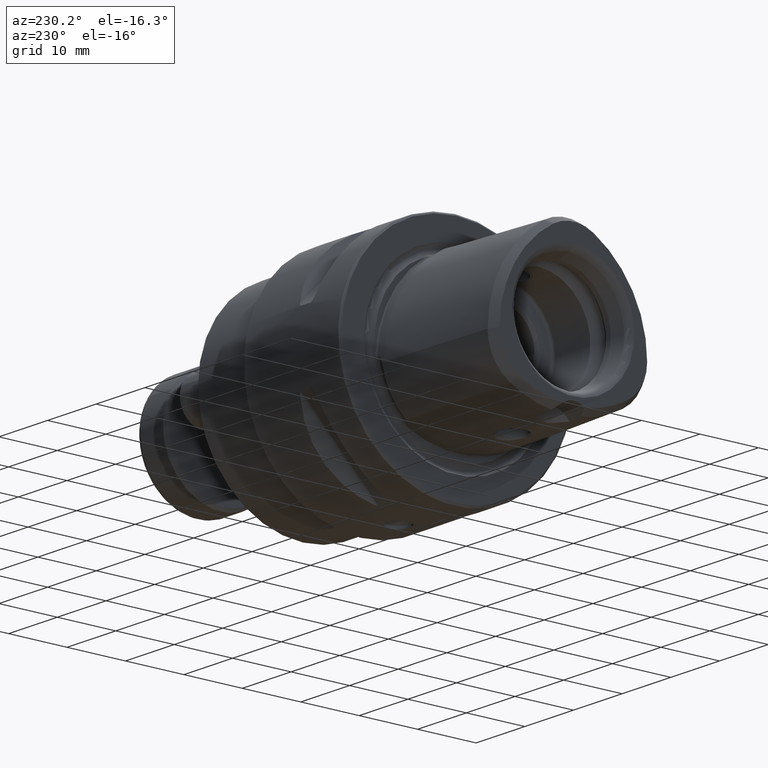
[diagram: clean part render]
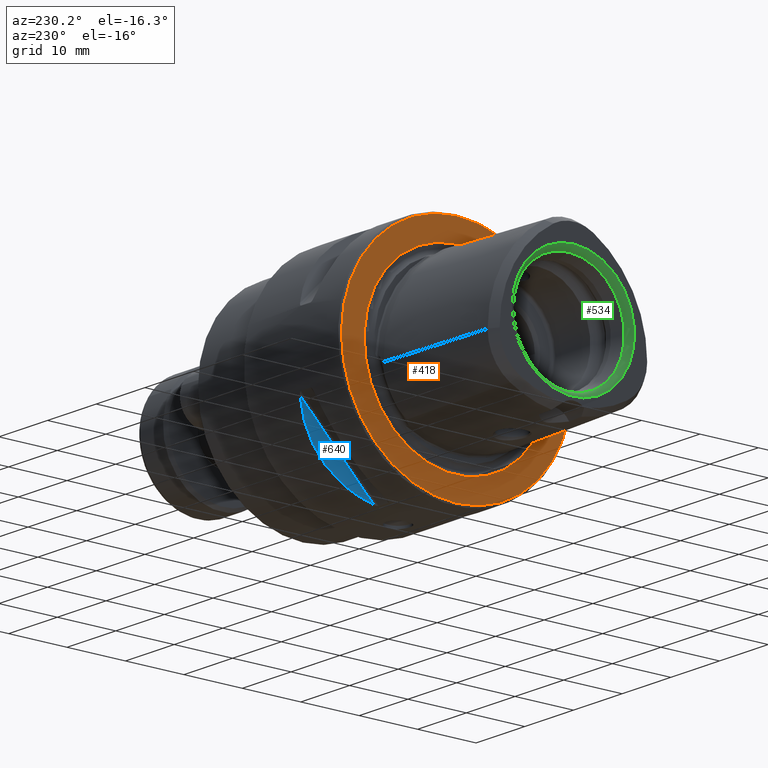
[diagram: same view with three faces highlighted in distinct colors, each labeled with its STEP entity id]
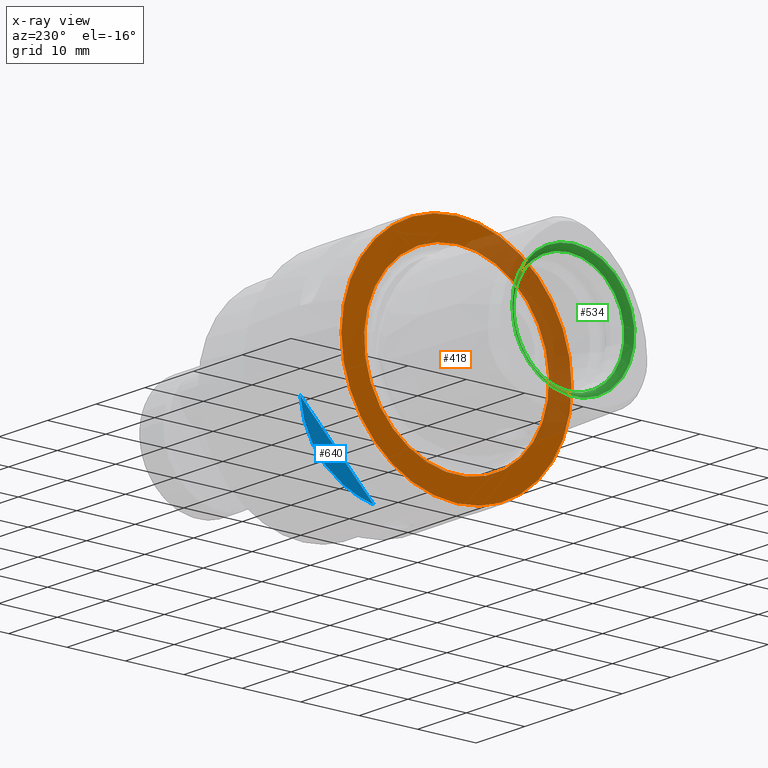
[diagram: x-ray of the same camera — body ghosted, the three highlighted faces saturated]
A machine part, auxiliary view with three faces highlighted in distinct colors.
The next image is the same camera in x-ray (body ghosted, the three faces saturated) — at least one of them is partly hidden behind the body in this view.
Their STEP definitions:

[orange] entity #418 — the highlighted planar face has unit normal (-1, 0, 0).
#418 = ADVANCED_FACE( '', ( #918, #919 ), #920, .T. );
#918 = FACE_OUTER_BOUND( '', #1589, .T. );
#919 = FACE_BOUND( '', #1590, .T. );
#920 = PLANE( '', #1591 );
#1589 = EDGE_LOOP( '', ( #2407 ) );
#1590 = EDGE_LOOP( '', ( #2408 ) );
#1591 = AXIS2_PLACEMENT_3D( '', #2409, #2410, #2411 );
#2407 = ORIENTED_EDGE( '', *, *, #3464, .T. );
#2408 = ORIENTED_EDGE( '', *, *, #3569, .F. );
#2409 = CARTESIAN_POINT( '', ( 0.000000000000000, 0.000000000000000, 15.5000000000000 ) );
#2410 = DIRECTION( '', ( -1.00000000000000, 0.000000000000000, 0.000000000000000 ) );
#2411 = DIRECTION( '', ( 0.000000000000000, 0.000000000000000, 1.00000000000000 ) );
#3464 = EDGE_CURVE( '', #3995, #3995, #3996, .T. );
#3569 = EDGE_CURVE( '', #4168, #4168, #4169, .T. );
#3995 = VERTEX_POINT( '', #4937 );
#3996 = CIRCLE( '', #4938, 19.7000000000000 );
#4168 = VERTEX_POINT( '', #5279 );
#4169 = CIRCLE( '', #5280, 15.8142135623731 );
#4937 = CARTESIAN_POINT( '', ( 0.000000000000000, 0.000000000000000, 19.7000000000000 ) );
#4938 = AXIS2_PLACEMENT_3D( '', #6165, #6166, #6167 );
#5279 = CARTESIAN_POINT( '', ( 0.000000000000000, 0.000000000000000, 15.8142135623731 ) );
#5280 = AXIS2_PLACEMENT_3D( '', #6298, #6299, #6300 );
#6165 = CARTESIAN_POINT( '', ( 0.000000000000000, 0.000000000000000, -1.70351190090483E-015 ) );
#6166 = DIRECTION( '', ( -1.00000000000000, 0.000000000000000, 0.000000000000000 ) );
#6167 = DIRECTION( '', ( 0.000000000000000, 0.000000000000000, 1.00000000000000 ) );
#6298 = CARTESIAN_POINT( '', ( 0.000000000000000, 0.000000000000000, 0.000000000000000 ) );
#6299 = DIRECTION( '', ( -1.00000000000000, 0.000000000000000, 0.000000000000000 ) );
#6300 = DIRECTION( '', ( 0.000000000000000, 0.000000000000000, 1.00000000000000 ) );

[blue] entity #640 — the highlighted planar face has unit normal (-0.866, 0.3536, -0.3536).
#640 = ADVANCED_FACE( '', ( #1322 ), #1323, .T. );
#1322 = FACE_OUTER_BOUND( '', #1993, .T. );
#1323 = PLANE( '', #1994 );
#1993 = EDGE_LOOP( '', ( #3245, #3246 ) );
#1994 = AXIS2_PLACEMENT_3D( '', #3247, #3248, #3249 );
#3245 = ORIENTED_EDGE( '', *, *, #3757, .F. );
#3246 = ORIENTED_EDGE( '', *, *, #3612, .F. );
#3247 = CARTESIAN_POINT( '', ( 9.38564064605510, 63.3326492205189, 38.0182264540405 ) );
#3248 = DIRECTION( '', ( -0.866025403784439, 0.353553390593273, -0.353553390593274 ) );
#3249 = DIRECTION( '', ( -0.377964473009227, 1.57009245868377E-016, 0.925820099772552 ) );
#3612 = EDGE_CURVE( '', #4234, #4235, #4236, .T. );
#3757 = EDGE_CURVE( '', #4235, #4234, #4442, .F. );
#4234 = VERTEX_POINT( '', #5371 );
#4235 = VERTEX_POINT( '', #5372 );
#4236 = LINE( '', #5373, #5374 );
#4442 = ELLIPSE( '', #5840, 23.0940107675850, 20.0000000000000 );
#5371 = CARTESIAN_POINT( '', ( 9.38564064605510, 18.9655392123869, -6.34888355409146 ) );
#5372 = CARTESIAN_POINT( '', ( 9.38564064605510, 6.34888355409146, -18.9655392123869 ) );
#5373 = CARTESIAN_POINT( '', ( 9.38564064605510, 63.3326492205189, 38.0182264540405 ) );
#5374 = VECTOR( '', #6353, 1000.00000000000 );
#5840 = AXIS2_PLACEMENT_3D( '', #6522, #6523, #6524 );
#6353 = DIRECTION( '', ( 0.000000000000000, -0.707106781186548, -0.707106781186548 ) );
#6522 = CARTESIAN_POINT( '', ( -0.948929172439179, 0.000000000000000, -1.78433750782313E-015 ) );
#6523 = DIRECTION( '', ( -0.866025403784439, 0.353553390593273, -0.353553390593274 ) );
#6524 = DIRECTION( '', ( -0.499999999999999, -0.612372435695795, 0.612372435695795 ) );

[green] entity #534 — the highlighted toroidal blend (fillet) surface has major radius 11.0084 mm and minor (blend) radius 1.5 mm.
#534 = ADVANCED_FACE( '', ( #1123, #1124 ), #1125, .T. );
#1123 = FACE_OUTER_BOUND( '', #1794, .T. );
#1124 = FACE_OUTER_BOUND( '', #1795, .T. );
#1125 = TOROIDAL_SURFACE( '', #1796, 11.0084278977480, 1.50000000000000 );
#1794 = EDGE_LOOP( '', ( #2816 ) );
#1795 = EDGE_LOOP( '', ( #2817 ) );
#1796 = AXIS2_PLACEMENT_3D( '', #2818, #2819, #2820 );
#2816 = ORIENTED_EDGE( '', *, *, #3538, .F. );
#2817 = ORIENTED_EDGE( '', *, *, #3691, .T. );
#2818 = CARTESIAN_POINT( '', ( -22.6000000000000, 0.000000000000000, 0.000000000000000 ) );
#2819 = DIRECTION( '', ( -1.00000000000000, 0.000000000000000, 0.000000000000000 ) );
#2820 = DIRECTION( '', ( 0.000000000000000, 0.000000000000000, 1.00000000000000 ) );
#3538 = EDGE_CURVE( '', #4118, #4118, #4119, .T. );
#3691 = EDGE_CURVE( '', #4350, #4350, #4351, .F. );
#4118 = VERTEX_POINT( '', #5206 );
#4119 = CIRCLE( '', #5207, 9.55953915831443 );
#4350 = VERTEX_POINT( '', #5605 );
#4351 = CIRCLE( '', #5606, 10.4699114170346 );
#5206 = CARTESIAN_POINT( '', ( -22.9882285676538, 0.000000000000000, 9.55953915831443 ) );
#5207 = AXIS2_PLACEMENT_3D( '', #6256, #6257, #6258 );
#5605 = CARTESIAN_POINT( '', ( -24.0000000000000, 10.4699114170346, 0.000000000000000 ) );
#5606 = AXIS2_PLACEMENT_3D( '', #6443, #6444, #6445 );
#6256 = CARTESIAN_POINT( '', ( -22.9882285676538, 0.000000000000000, 0.000000000000000 ) );
#6257 = DIRECTION( '', ( -1.00000000000000, 0.000000000000000, 0.000000000000000 ) );
#6258 = DIRECTION( '', ( 0.000000000000000, 0.000000000000000, 1.00000000000000 ) );
#6443 = CARTESIAN_POINT( '', ( -24.0000000000000, 8.57224447675663E-017, 0.000000000000000 ) );
#6444 = DIRECTION( '', ( 1.00000000000000, -6.12303176911189E-017, 0.000000000000000 ) );
#6445 = DIRECTION( '', ( 6.12303176911189E-017, 1.00000000000000, 0.000000000000000 ) );